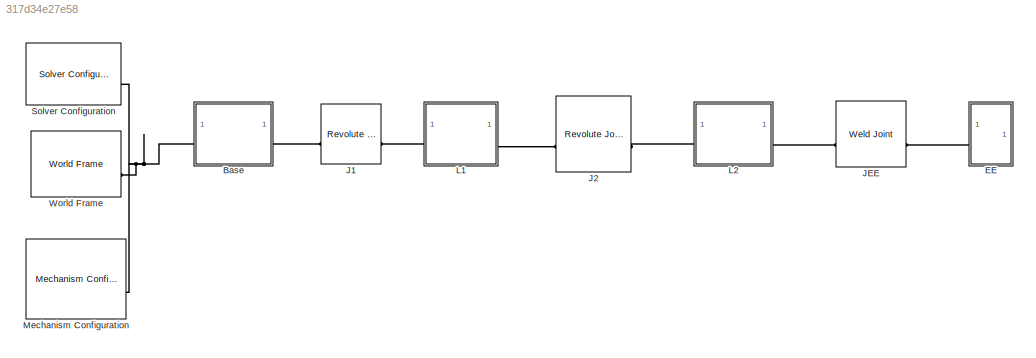
MODEL slx_317d34e27e58
KIND model
CONFIG AbsTol = auto
CONFIG EnableMultiTasking = off
CONFIG FixedStep = auto
CONFIG MaxStep = auto
CONFIG MinStep = auto
CONFIG RelTol = 1e-3
CONFIG SampleTimeConstraint = Unconstrained
CONFIG SolverName = VariableStepAuto
CONFIG StartTime = 0.0
CONFIG StopTime = 10.0
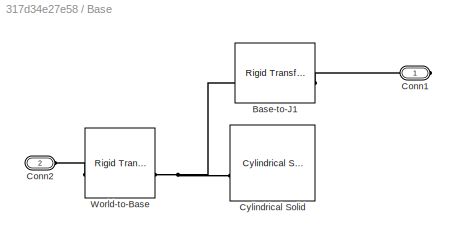
BLOCK [SubSystem] Base
BLOCK [Reference] Base/Base-to-J1  REF=sm_lib/Frames and
Transforms/Rigid
Transform
  SourceBlock = sm_lib/Frames and\nTransforms/Rigid\nTransform
  SourceType = Rigid\nTransform
BLOCK [PMIOPort] Base/Conn1
  Side = Right
BLOCK [PMIOPort] Base/Conn2
  Port = 2
  Side = Left
BLOCK [Reference] Base/Cylindrical Solid  REF=sm_lib/Body Elements/Cylindrical Solid
  SourceBlock = sm_lib/Body Elements/Cylindrical Solid
  SourceType = Cylindrical Solid
BLOCK [Reference] Base/World-to-Base  REF=sm_lib/Frames and
Transforms/Rigid
Transform
  SourceBlock = sm_lib/Frames and\nTransforms/Rigid\nTransform
  SourceType = Rigid\nTransform
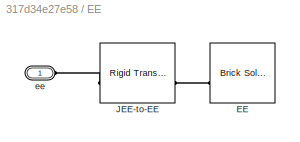
BLOCK [SubSystem] EE
BLOCK [Reference] EE/EE  REF=sm_lib/Body Elements/Brick Solid
  SourceBlock = sm_lib/Body Elements/Brick Solid
  SourceType = Brick Solid
BLOCK [Reference] EE/JEE-to-EE  REF=sm_lib/Frames and
Transforms/Rigid
Transform
  SourceBlock = sm_lib/Frames and\nTransforms/Rigid\nTransform
  SourceType = Rigid\nTransform
BLOCK [PMIOPort] EE/ee
  Side = Left
BLOCK [Reference] J1  REF=sm_lib/Joints/Revolute Joint
  SourceBlock = sm_lib/Joints/Revolute Joint
  SourceType = Revolute Joint
BLOCK [Reference] J2  REF=sm_lib/Joints/Revolute Joint
  SourceBlock = sm_lib/Joints/Revolute Joint
  SourceType = Revolute Joint
BLOCK [Reference] JEE  REF=sm_lib/Joints/Weld Joint
  SourceBlock = sm_lib/Joints/Weld Joint
  SourceType = Weld Joint
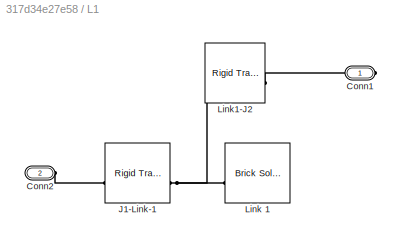
BLOCK [SubSystem] L1
BLOCK [PMIOPort] L1/Conn1
  Side = Right
BLOCK [PMIOPort] L1/Conn2
  Port = 2
  Side = Left
BLOCK [Reference] L1/J1-Link-1  REF=sm_lib/Frames and
Transforms/Rigid
Transform
  SourceBlock = sm_lib/Frames and\nTransforms/Rigid\nTransform
  SourceType = Rigid\nTransform
BLOCK [Reference] L1/Link 1  REF=sm_lib/Body Elements/Brick Solid
  SourceBlock = sm_lib/Body Elements/Brick Solid
  SourceType = Brick Solid
BLOCK [Reference] L1/Link1-J2  REF=sm_lib/Frames and
Transforms/Rigid
Transform
  SourceBlock = sm_lib/Frames and\nTransforms/Rigid\nTransform
  SourceType = Rigid\nTransform
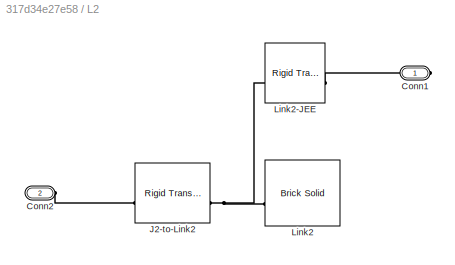
BLOCK [SubSystem] L2
BLOCK [PMIOPort] L2/Conn1
  Side = Right
BLOCK [PMIOPort] L2/Conn2
  Port = 2
  Side = Left
BLOCK [Reference] L2/J2-to-Link2  REF=sm_lib/Frames and
Transforms/Rigid
Transform
  SourceBlock = sm_lib/Frames and\nTransforms/Rigid\nTransform
  SourceType = Rigid\nTransform
BLOCK [Reference] L2/Link2  REF=sm_lib/Body Elements/Brick Solid
  SourceBlock = sm_lib/Body Elements/Brick Solid
  SourceType = Brick Solid
BLOCK [Reference] L2/Link2-JEE  REF=sm_lib/Frames and
Transforms/Rigid
Transform
  SourceBlock = sm_lib/Frames and\nTransforms/Rigid\nTransform
  SourceType = Rigid\nTransform
BLOCK [Reference] Mechanism Configuration  REF=sm_lib/Utilities/Mechanism
Configuration
  SourceBlock = sm_lib/Utilities/Mechanism\nConfiguration
  SourceType = Mechanism\nConfiguration
BLOCK [Reference] Solver Configuration  REF=nesl_utility/Solver
Configuration
  SourceBlock = nesl_utility/Solver\nConfiguration
  SourceType = Solver\nConfiguration
BLOCK [Reference] World Frame  REF=sm_lib/Frames and
Transforms/World Frame
  SourceBlock = sm_lib/Frames and\nTransforms/World Frame
  SourceType = World Frame
PNET net1: Base/Base-to-J1:LConn1 -- Base/Cylindrical Solid:RConn1 -- Base/World-to-Base:RConn1
PLINE Base/Base-to-J1:RConn1 -- Base/Conn1:RConn1
PLINE Base/Conn2:RConn1 -- Base/World-to-Base:LConn1
PNET net2: Base:LConn1 -- Mechanism Configuration:RConn1 -- Solver Configuration:RConn1 -- World Frame:RConn1
PLINE Base:RConn1 -- J1:LConn1
PLINE EE/EE:RConn1 -- EE/JEE-to-EE:RConn1
PLINE EE/JEE-to-EE:LConn1 -- EE/ee:RConn1
PLINE EE:LConn1 -- JEE:RConn1
PLINE J1:RConn1 -- L1:LConn1
PLINE J2:LConn1 -- L1:RConn1
PLINE J2:RConn1 -- L2:LConn1
PLINE JEE:LConn1 -- L2:RConn1
PLINE L1/Conn1:RConn1 -- L1/Link1-J2:RConn1
PLINE L1/Conn2:RConn1 -- L1/J1-Link-1:LConn1
PNET net3: L1/J1-Link-1:RConn1 -- L1/Link 1:RConn1 -- L1/Link1-J2:LConn1
PLINE L2/Conn1:RConn1 -- L2/Link2-JEE:RConn1
PLINE L2/Conn2:RConn1 -- L2/J2-to-Link2:LConn1
PNET net4: L2/J2-to-Link2:RConn1 -- L2/Link2-JEE:LConn1 -- L2/Link2:RConn1
note: PNET lines group multi-terminal physical nets as a canonical sorted terminal list (undirected conserving connections); 2-terminal nets keep the pairwise PLINE form
